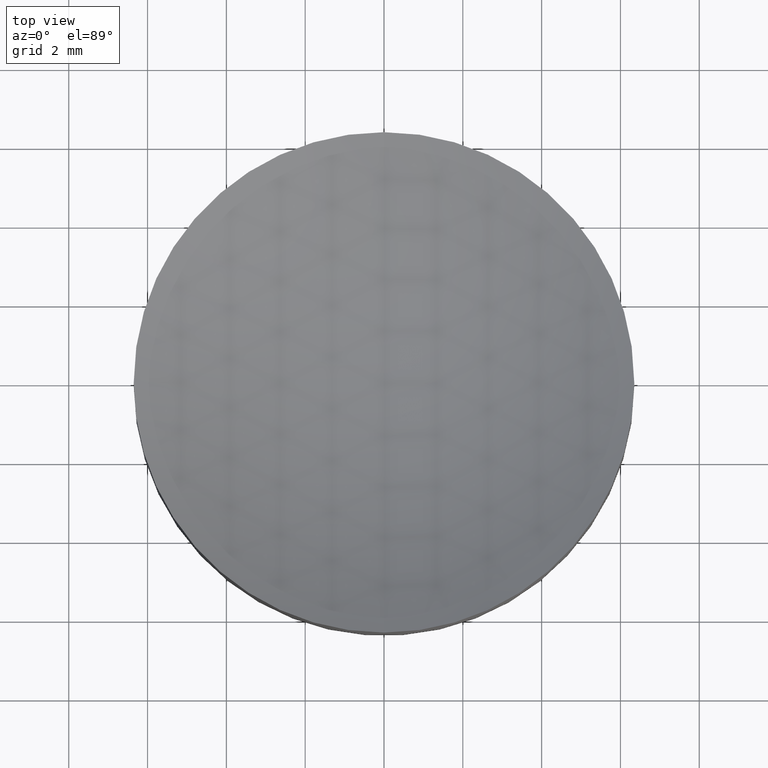
[diagram: clean part render]
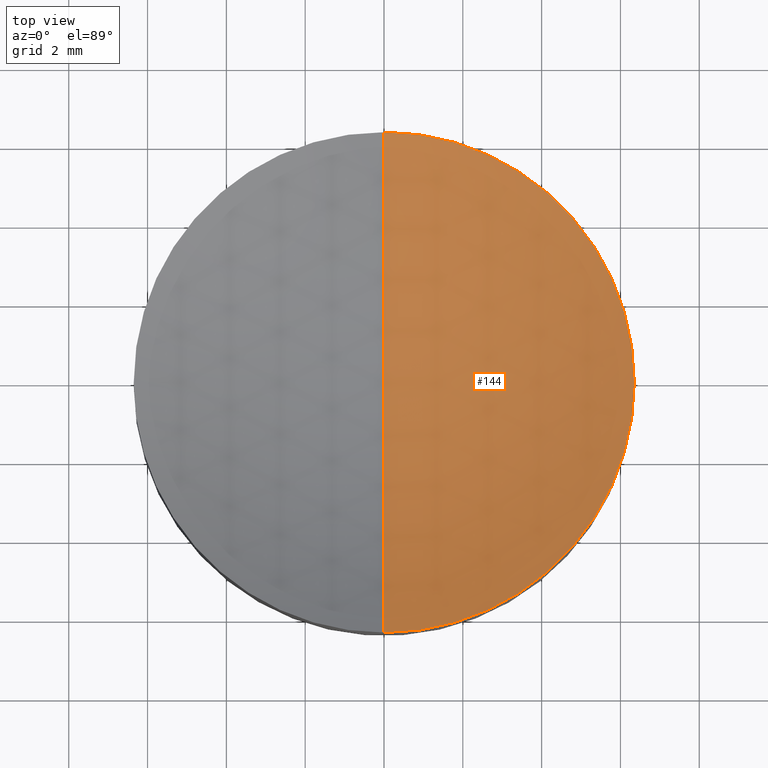
[diagram: same view with one face highlighted and labeled with its STEP entity id]
A machine part, top view. The second image highlights one B-rep face of the part: STEP entity #144.
In plain terms, the highlighted spherical surface has radius 12.86 mm.
Its self-contained STEP definition (entity closure, byte-faithful):
#19 = ORIENTED_EDGE ( 'NONE', *, *, #20, .F. ) ;
#20 = EDGE_CURVE ( 'NONE', #39, #96, #141, .T. ) ;
#22 = VERTEX_POINT ( 'NONE', #119 ) ;
#28 = CARTESIAN_POINT ( 'NONE',  ( 0.0000000000000000000, 7.874218855077883200E-016, 0.6614465927879519300 ) ) ;
#32 = DIRECTION ( 'NONE',  ( 0.0000000000000000000, 0.0000000000000000000, -1.000000000000000000 ) ) ;
#33 = DIRECTION ( 'NONE',  ( 1.000000000000000000, 0.0000000000000000000, 0.0000000000000000000 ) ) ;
#34 = CARTESIAN_POINT ( 'NONE',  ( 0.0000000000000000000, 0.0000000000000000000, 13.52144659278794800 ) ) ;
#35 = AXIS2_PLACEMENT_3D ( 'NONE', #34, #33, #32 ) ;
#39 = VERTEX_POINT ( 'NONE', #28 ) ;
#75 = DIRECTION ( 'NONE',  ( 1.000000000000000000, 0.0000000000000000000, 0.0000000000000000000 ) ) ;
#76 = DIRECTION ( 'NONE',  ( -0.0000000000000000000, -0.0000000000000000000, 1.000000000000000000 ) ) ;
#77 = CARTESIAN_POINT ( 'NONE',  ( 0.0000000000000000000, 0.0000000000000000000, 2.338553407212048600 ) ) ;
#78 = AXIS2_PLACEMENT_3D ( 'NONE', #77, #76, #75 ) ;
#79 = CIRCLE ( 'NONE', #78, 6.349999999999998800 ) ;
#81 = DIRECTION ( 'NONE',  ( 1.000000000000000000, 0.0000000000000000000, 0.0000000000000000000 ) ) ;
#82 = DIRECTION ( 'NONE',  ( -0.0000000000000000000, -0.0000000000000000000, 1.000000000000000000 ) ) ;
#83 = CARTESIAN_POINT ( 'NONE',  ( 0.0000000000000000000, 0.0000000000000000000, 2.338553407212048600 ) ) ;
#84 = AXIS2_PLACEMENT_3D ( 'NONE', #83, #82, #81 ) ;
#85 = CIRCLE ( 'NONE', #84, 6.349999999999998800 ) ;
#94 = CARTESIAN_POINT ( 'NONE',  ( 0.0000000000000000000, 6.349999999999999600, 2.338553407212049100 ) ) ;
#96 = VERTEX_POINT ( 'NONE', #94 ) ;
#99 = ORIENTED_EDGE ( 'NONE', *, *, #100, .T. ) ;
#100 = EDGE_CURVE ( 'NONE', #39, #154, #124, .T. ) ;
#101 = EDGE_LOOP ( 'NONE', ( #19, #99, #155, #138 ) ) ;
#119 = CARTESIAN_POINT ( 'NONE',  ( 6.349999999999998800, 0.0000000000000000000, 2.338553407212048600 ) ) ;
#120 = EDGE_CURVE ( 'NONE', #22, #96, #85, .T. ) ;
#122 = EDGE_CURVE ( 'NONE', #154, #22, #79, .T. ) ;
#124 = CIRCLE ( 'NONE', #153, 12.85999999999999600 ) ;
#138 = ORIENTED_EDGE ( 'NONE', *, *, #120, .T. ) ;
#141 = CIRCLE ( 'NONE', #35, 12.85999999999999600 ) ;
#144 = ADVANCED_FACE ( 'NONE', ( #182 ), #223, .F. ) ;
#150 = DIRECTION ( 'NONE',  ( -1.224606353822377300E-016, -1.000000000000000000, 0.0000000000000000000 ) ) ;
#151 = DIRECTION ( 'NONE',  ( -1.000000000000000000, 1.224606353822377300E-016, 0.0000000000000000000 ) ) ;
#152 = CARTESIAN_POINT ( 'NONE',  ( 0.0000000000000000000, 0.0000000000000000000, 13.52144659278794800 ) ) ;
#153 = AXIS2_PLACEMENT_3D ( 'NONE', #152, #151, #150 ) ;
#154 = VERTEX_POINT ( 'NONE', #227 ) ;
#155 = ORIENTED_EDGE ( 'NONE', *, *, #122, .T. ) ;
#182 = FACE_OUTER_BOUND ( 'NONE', #101, .T. ) ;
#222 = CARTESIAN_POINT ( 'NONE',  ( 0.0000000000000000000, 0.0000000000000000000, 13.52144659278794800 ) ) ;
#223 = SPHERICAL_SURFACE ( 'NONE', #226, 12.85999999999999600 ) ;
#224 = DIRECTION ( 'NONE',  ( 0.0000000000000000000, 1.000000000000000000, 0.0000000000000000000 ) ) ;
#225 = DIRECTION ( 'NONE',  ( -1.000000000000000000, 0.0000000000000000000, 0.0000000000000000000 ) ) ;
#226 = AXIS2_PLACEMENT_3D ( 'NONE', #222, #225, #224 ) ;
#227 = CARTESIAN_POINT ( 'NONE',  ( -7.776250346772096400E-016, -6.349999999999999600, 2.338553407212049100 ) ) ;